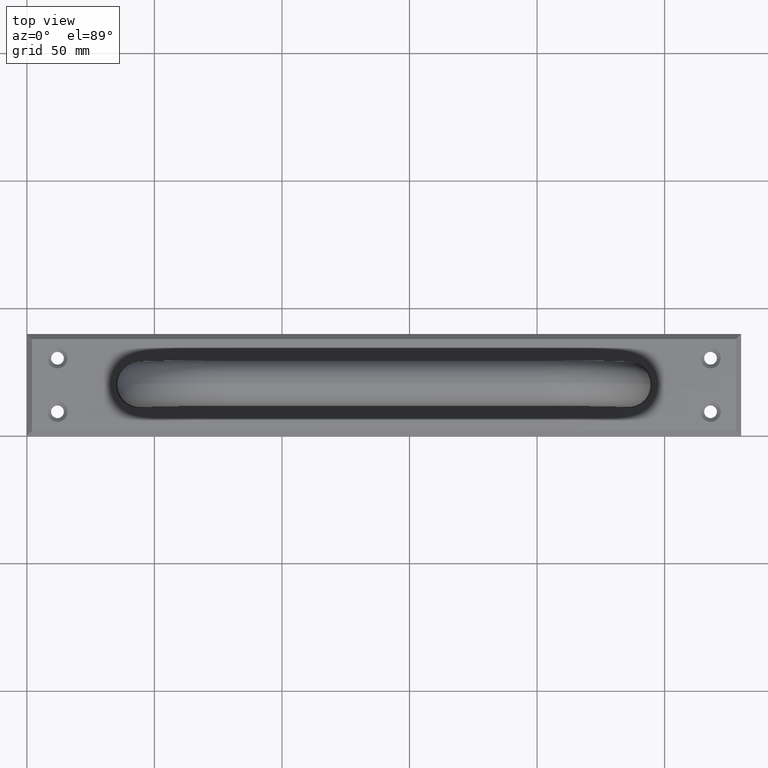
[diagram: clean part render]
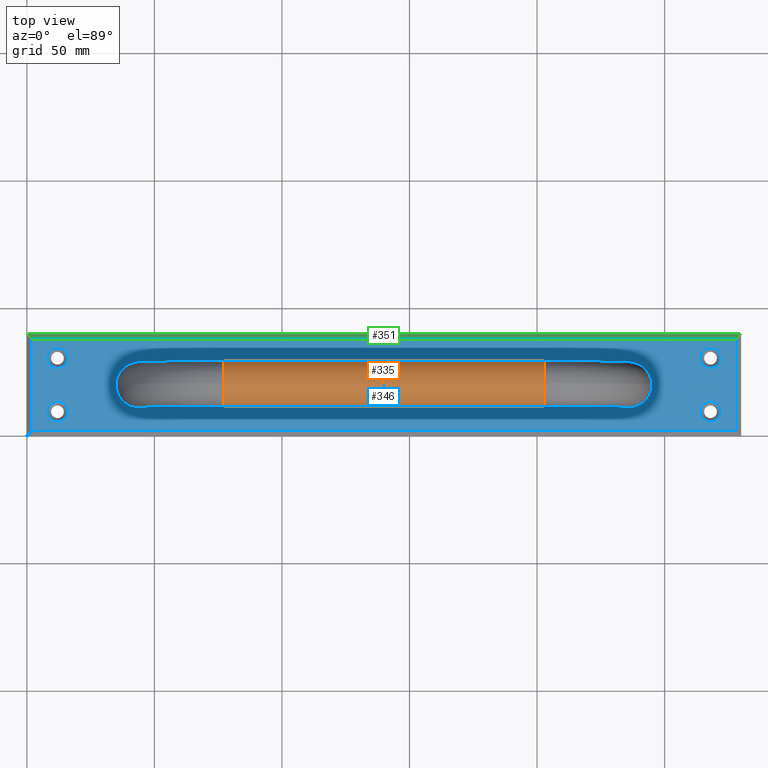
[diagram: same view with three faces highlighted in distinct colors, each labeled with its STEP entity id]
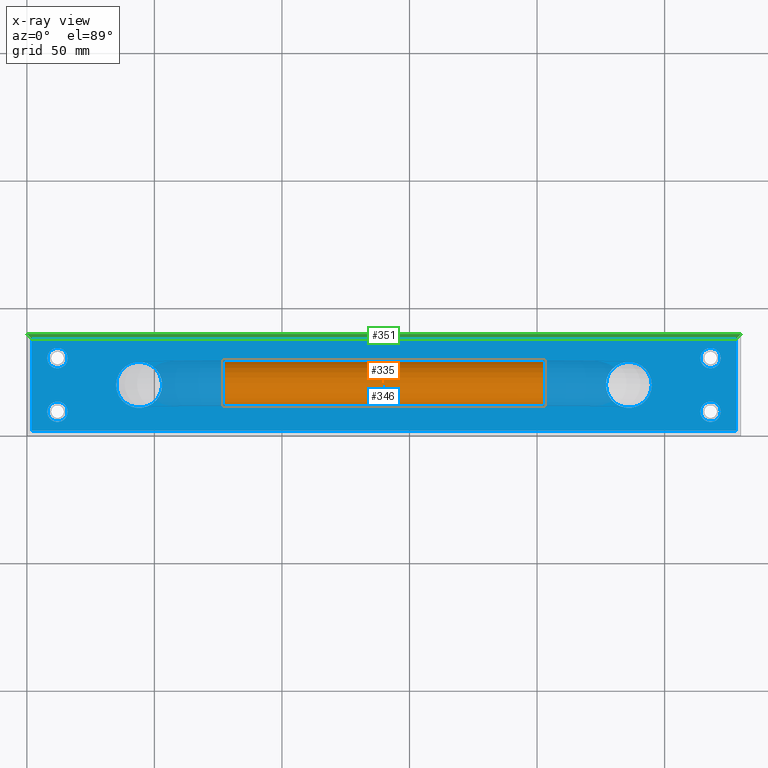
[diagram: x-ray of the same camera — body ghosted, the three highlighted faces saturated]
A machine part, top view with three faces highlighted in distinct colors.
The next image is the same camera in x-ray (body ghosted, the three faces saturated) — at least one of them is partly hidden behind the body in this view.
Their STEP definitions:

[orange] entity #335 — the highlighted cylindrical surface (bore or boss wall) has radius 9 mm, axis along (-1, 0, -0).
#74=FACE_BOUND('',#124,.T.);
#97=FACE_OUTER_BOUND('',#123,.T.);
#123=EDGE_LOOP('',(#255));
#124=EDGE_LOOP('',(#256));
#167=CIRCLE('',#364,9.);
#168=CIRCLE('',#366,9.);
#185=VERTEX_POINT('',#514);
#186=VERTEX_POINT('',#517);
#215=EDGE_CURVE('',#185,#185,#167,.T.);
#216=EDGE_CURVE('',#186,#186,#168,.T.);
#255=ORIENTED_EDGE('',*,*,#215,.T.);
#256=ORIENTED_EDGE('',*,*,#216,.F.);
#327=CYLINDRICAL_SURFACE('',#365,9.);
#335=ADVANCED_FACE('',(#97,#74),#327,.T.);
#364=AXIS2_PLACEMENT_3D('',#515,#414,#415);
#365=AXIS2_PLACEMENT_3D('',#516,#416,#417);
#366=AXIS2_PLACEMENT_3D('',#518,#418,#419);
#414=DIRECTION('center_axis',(1.,0.,-2.52323414687536E-16));
#415=DIRECTION('ref_axis',(-2.52323414687536E-16,0.,-1.));
#416=DIRECTION('center_axis',(-1.,0.,-1.76225876924628E-16));
#417=DIRECTION('ref_axis',(1.76225876924628E-16,0.,-1.));
#418=DIRECTION('center_axis',(1.,0.,-2.52323414687536E-16));
#419=DIRECTION('ref_axis',(-2.52323414687536E-16,0.,-1.));
#514=CARTESIAN_POINT('',(77.,20.,47.));
#515=CARTESIAN_POINT('Origin',(77.,20.,38.));
#516=CARTESIAN_POINT('Origin',(203.,20.,38.));
#517=CARTESIAN_POINT('',(203.,20.,47.));
#518=CARTESIAN_POINT('Origin',(203.,20.,38.));

[blue] entity #346 — the highlighted planar face has unit normal (0, 0, 1).
#16=LINE('',#557,#36);
#19=LINE('',#563,#39);
#20=LINE('',#565,#40);
#21=LINE('',#566,#41);
#36=VECTOR('',#465,36.);
#39=VECTOR('',#470,276.);
#40=VECTOR('',#471,36.);
#41=VECTOR('',#472,276.);
#56=PLANE('',#389);
#84=FACE_BOUND('',#145,.T.);
#85=FACE_BOUND('',#146,.T.);
#86=FACE_BOUND('',#147,.T.);
#87=FACE_BOUND('',#148,.T.);
#88=FACE_BOUND('',#149,.T.);
#89=FACE_BOUND('',#150,.T.);
#108=FACE_OUTER_BOUND('',#144,.T.);
#144=EDGE_LOOP('',(#279,#280,#281,#282));
#145=EDGE_LOOP('',(#283));
#146=EDGE_LOOP('',(#284));
#147=EDGE_LOOP('',(#285));
#148=EDGE_LOOP('',(#286));
#149=EDGE_LOOP('',(#287));
#150=EDGE_LOOP('',(#288));
#164=CIRCLE('',#359,9.);
#166=CIRCLE('',#362,9.);
#169=CIRCLE('',#369,4.);
#172=CIRCLE('',#374,4.);
#175=CIRCLE('',#379,4.);
#178=CIRCLE('',#384,4.);
#182=VERTEX_POINT('',#506);
#184=VERTEX_POINT('',#511);
#187=VERTEX_POINT('',#521);
#190=VERTEX_POINT('',#529);
#193=VERTEX_POINT('',#537);
#196=VERTEX_POINT('',#545);
#200=VERTEX_POINT('',#554);
#201=VERTEX_POINT('',#556);
#203=VERTEX_POINT('',#562);
#204=VERTEX_POINT('',#564);
#212=EDGE_CURVE('',#182,#182,#164,.T.);
#214=EDGE_CURVE('',#184,#184,#166,.T.);
#217=EDGE_CURVE('',#187,#187,#169,.T.);
#220=EDGE_CURVE('',#190,#190,#172,.T.);
#223=EDGE_CURVE('',#193,#193,#175,.T.);
#226=EDGE_CURVE('',#196,#196,#178,.T.);
#230=EDGE_CURVE('',#200,#201,#16,.T.);
#233=EDGE_CURVE('',#203,#200,#19,.T.);
#234=EDGE_CURVE('',#204,#203,#20,.T.);
#235=EDGE_CURVE('',#201,#204,#21,.T.);
#279=ORIENTED_EDGE('',*,*,#230,.F.);
#280=ORIENTED_EDGE('',*,*,#233,.F.);
#281=ORIENTED_EDGE('',*,*,#234,.F.);
#282=ORIENTED_EDGE('',*,*,#235,.F.);
#283=ORIENTED_EDGE('',*,*,#212,.T.);
#284=ORIENTED_EDGE('',*,*,#214,.T.);
#285=ORIENTED_EDGE('',*,*,#217,.T.);
#286=ORIENTED_EDGE('',*,*,#220,.T.);
#287=ORIENTED_EDGE('',*,*,#223,.T.);
#288=ORIENTED_EDGE('',*,*,#226,.T.);
#346=ADVANCED_FACE('',(#108,#84,#85,#86,#87,#88,#89),#56,.T.);
#359=AXIS2_PLACEMENT_3D('',#507,#404,#405);
#362=AXIS2_PLACEMENT_3D('',#512,#410,#411);
#369=AXIS2_PLACEMENT_3D('',#522,#424,#425);
#374=AXIS2_PLACEMENT_3D('',#530,#434,#435);
#379=AXIS2_PLACEMENT_3D('',#538,#444,#445);
#384=AXIS2_PLACEMENT_3D('',#546,#454,#455);
#389=AXIS2_PLACEMENT_3D('',#561,#468,#469);
#404=DIRECTION('center_axis',(0.,0.,-1.));
#405=DIRECTION('ref_axis',(1.,0.,0.));
#410=DIRECTION('center_axis',(0.,0.,-1.));
#411=DIRECTION('ref_axis',(-1.,0.,0.));
#424=DIRECTION('center_axis',(0.,0.,-1.));
#425=DIRECTION('ref_axis',(1.,0.,0.));
#434=DIRECTION('center_axis',(0.,0.,-1.));
#435=DIRECTION('ref_axis',(1.,0.,0.));
#444=DIRECTION('center_axis',(0.,0.,-1.));
#445=DIRECTION('ref_axis',(1.,0.,0.));
#454=DIRECTION('center_axis',(0.,0.,-1.));
#455=DIRECTION('ref_axis',(1.,0.,0.));
#465=DIRECTION('',(-3.67548784903353E-16,1.,0.));
#468=DIRECTION('center_axis',(0.,0.,1.));
#469=DIRECTION('ref_axis',(1.,0.,0.));
#470=DIRECTION('',(-1.,-1.40868018789466E-32,0.));
#471=DIRECTION('',(0.,-1.,0.));
#472=DIRECTION('',(1.,-1.26882631385732E-16,0.));
#506=CARTESIAN_POINT('',(35.,20.,3.));
#507=CARTESIAN_POINT('Origin',(44.,20.,3.));
#511=CARTESIAN_POINT('',(245.,20.,3.));
#512=CARTESIAN_POINT('Origin',(236.,20.,3.));
#521=CARTESIAN_POINT('',(16.,9.50000000000001,3.));
#522=CARTESIAN_POINT('Origin',(12.,9.50000000000001,3.));
#529=CARTESIAN_POINT('',(16.,30.5,3.));
#530=CARTESIAN_POINT('Origin',(12.,30.5,3.));
#537=CARTESIAN_POINT('',(272.,30.5,3.));
#538=CARTESIAN_POINT('Origin',(268.,30.5,3.));
#545=CARTESIAN_POINT('',(272.,9.50000000000001,3.));
#546=CARTESIAN_POINT('Origin',(268.,9.50000000000001,3.));
#554=CARTESIAN_POINT('',(1.99999999999999,2.,3.));
#556=CARTESIAN_POINT('',(1.99999999999999,38.,3.));
#557=CARTESIAN_POINT('',(1.99999999999998,30.,3.));
#561=CARTESIAN_POINT('Origin',(140.,20.,3.));
#562=CARTESIAN_POINT('',(278.,2.,3.));
#563=CARTESIAN_POINT('',(70.,2.,3.));
#564=CARTESIAN_POINT('',(278.,38.,3.));
#565=CARTESIAN_POINT('',(278.,10.,3.));
#566=CARTESIAN_POINT('',(210.,38.,3.));

[green] entity #351 — the highlighted planar face has unit normal (0, 0.7071, 0.7071).
#17=LINE('',#559,#37);
#21=LINE('',#566,#41);
#24=LINE('',#573,#44);
#32=LINE('',#588,#52);
#37=VECTOR('',#466,3.46410161513776);
#41=VECTOR('',#472,276.);
#44=VECTOR('',#479,3.46410161513775);
#52=VECTOR('',#493,280.);
#61=PLANE('',#394);
#113=FACE_OUTER_BOUND('',#155,.T.);
#155=EDGE_LOOP('',(#305,#306,#307,#308));
#201=VERTEX_POINT('',#556);
#202=VERTEX_POINT('',#558);
#204=VERTEX_POINT('',#564);
#206=VERTEX_POINT('',#572);
#231=EDGE_CURVE('',#201,#202,#17,.T.);
#235=EDGE_CURVE('',#201,#204,#21,.T.);
#238=EDGE_CURVE('',#206,#204,#24,.T.);
#246=EDGE_CURVE('',#206,#202,#32,.T.);
#305=ORIENTED_EDGE('',*,*,#231,.F.);
#306=ORIENTED_EDGE('',*,*,#235,.T.);
#307=ORIENTED_EDGE('',*,*,#238,.F.);
#308=ORIENTED_EDGE('',*,*,#246,.T.);
#351=ADVANCED_FACE('',(#113),#61,.T.);
#394=AXIS2_PLACEMENT_3D('',#587,#491,#492);
#466=DIRECTION('',(-0.577350269189625,0.577350269189627,-0.577350269189626));
#472=DIRECTION('',(1.,-1.26882631385732E-16,0.));
#479=DIRECTION('',(-0.577350269189624,-0.577350269189627,0.577350269189626));
#491=DIRECTION('center_axis',(8.97195690676442E-17,0.707106781186547,0.707106781186548));
#492=DIRECTION('ref_axis',(1.,0.,-1.33226762955019E-16));
#493=DIRECTION('',(-1.,1.26882631385732E-16,0.));
#556=CARTESIAN_POINT('',(1.99999999999999,38.,3.));
#558=CARTESIAN_POINT('',(-1.47019513961341E-14,40.,1.));
#559=CARTESIAN_POINT('',(37.3333333333332,2.66666666666669,38.3333333333333));
#564=CARTESIAN_POINT('',(278.,38.,3.));
#566=CARTESIAN_POINT('',(210.,38.,3.));
#572=CARTESIAN_POINT('',(280.,40.,1.));
#573=CARTESIAN_POINT('',(262.666666666667,22.6666666666667,18.3333333333333));
#587=CARTESIAN_POINT('Origin',(210.,39.,2.));
#588=CARTESIAN_POINT('',(210.,40.,1.));